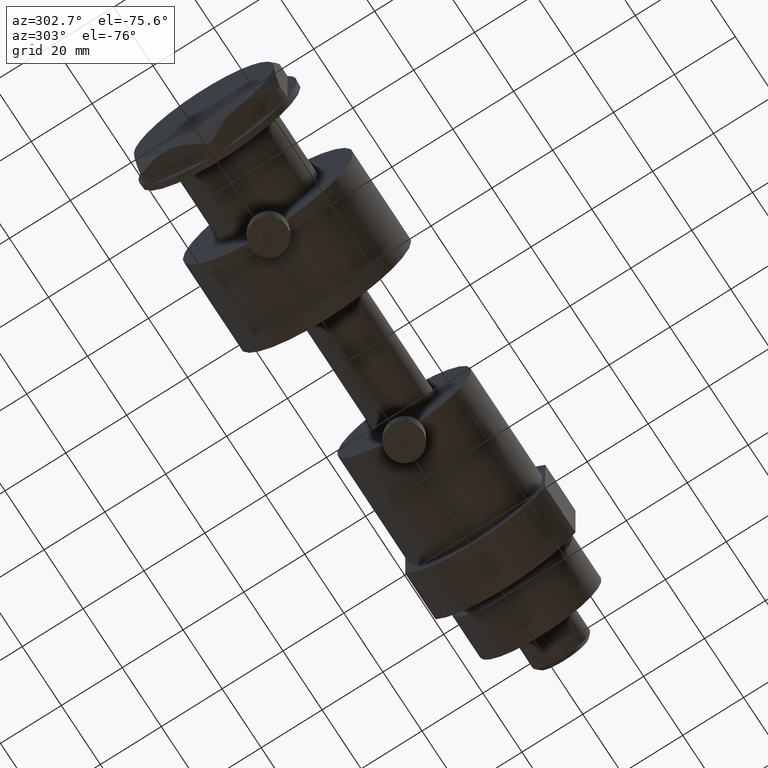
[diagram: clean part render]
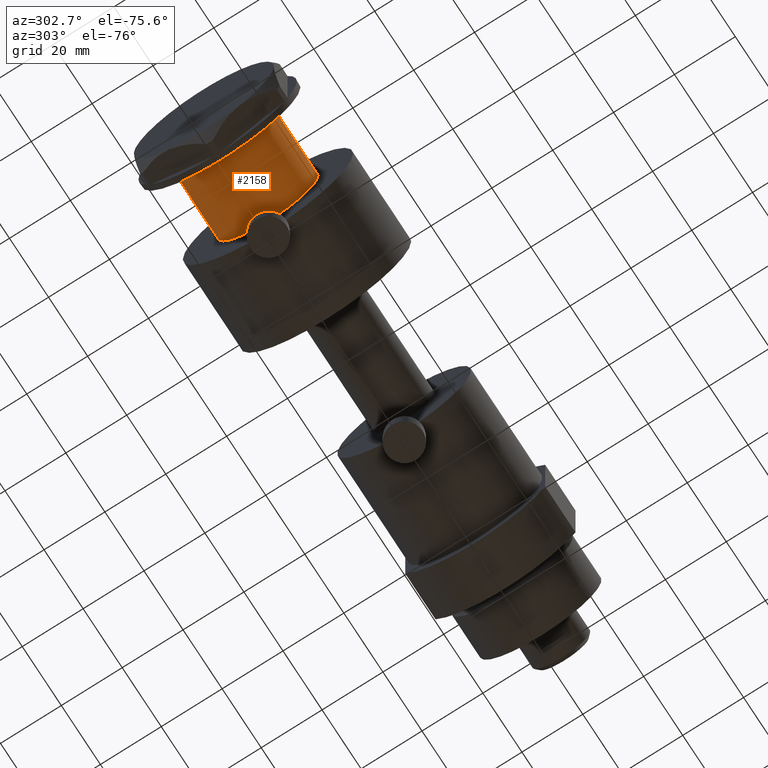
[diagram: same view with one face highlighted and labeled with its STEP entity id]
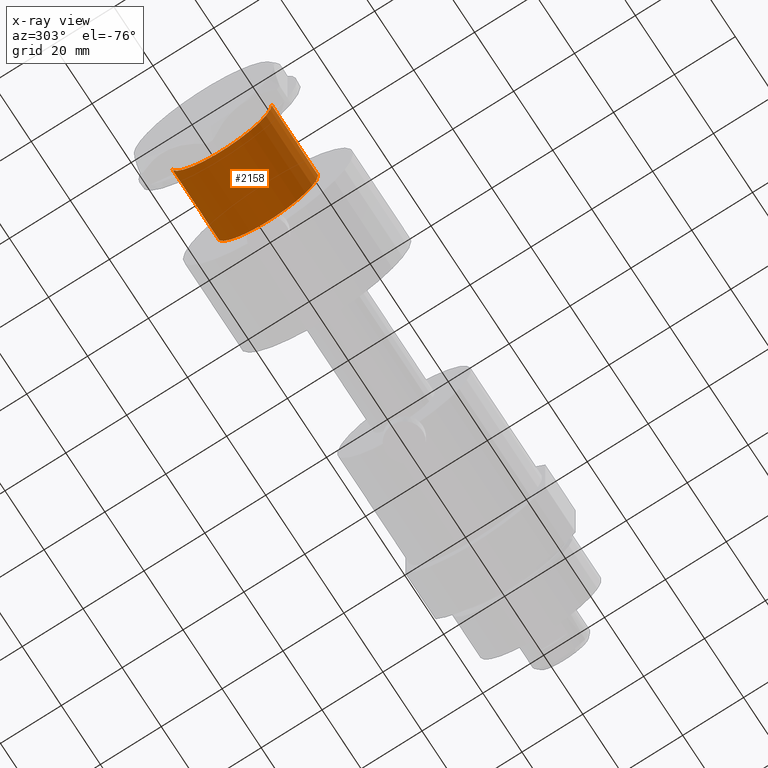
[diagram: x-ray of the same camera — body ghosted, the highlighted face saturated]
A machine part, auxiliary view. The second image highlights one B-rep face of the part: STEP entity #2158.
The next image is the same camera in x-ray: the body ghosted, the highlighted face saturated — about 0% of this face is hidden behind the body in this view.
In plain terms, the highlighted cylindrical surface (partial cylindrical patch) has radius 16.5 mm, axis along (-1, -0, 0).
Its self-contained STEP definition (entity closure, byte-faithful):
#42 = DIRECTION ( 'NONE',  ( -1.000000000000000000, 0.000000000000000000, 0.000000000000000000 ) ) ;
#48 = VERTEX_POINT ( 'NONE', #1894 ) ;
#94 = DIRECTION ( 'NONE',  ( -0.000000000000000000, -0.000000000000000000, 1.000000000000000000 ) ) ;
#301 = CARTESIAN_POINT ( 'NONE',  ( 0.000000000000000000, 0.000000000000000000, -2.000000000000000000 ) ) ;
#347 = ORIENTED_EDGE ( 'NONE', *, *, #625, .F. ) ;
#431 = ORIENTED_EDGE ( 'NONE', *, *, #3242, .T. ) ;
#536 = VERTEX_POINT ( 'NONE', #809 ) ;
#625 = EDGE_CURVE ( 'NONE', #705, #938, #1352, .T. ) ;
#705 = VERTEX_POINT ( 'NONE', #2273 ) ;
#809 = CARTESIAN_POINT ( 'NONE',  ( -16.50000000000000000, 2.020667218593133100E-15, -2.000000000000000000 ) ) ;
#938 = VERTEX_POINT ( 'NONE', #2999 ) ;
#1194 = CARTESIAN_POINT ( 'NONE',  ( -16.50000000000000000, 2.020667218593133100E-15, -25.80000000000000426 ) ) ;
#1343 = EDGE_CURVE ( 'NONE', #705, #536, #3454, .T. ) ;
#1352 = CIRCLE ( 'NONE', #2328, 16.50000000000000000 ) ;
#1382 = DIRECTION ( 'NONE',  ( 0.000000000000000000, 0.000000000000000000, -1.000000000000000000 ) ) ;
#1432 = CARTESIAN_POINT ( 'NONE',  ( 16.50000000000000000, 0.000000000000000000, -25.80000000000000426 ) ) ;
#1688 = LINE ( 'NONE', #1432, #1923 ) ;
#1832 = ORIENTED_EDGE ( 'NONE', *, *, #1343, .T. ) ;
#1866 = AXIS2_PLACEMENT_3D ( 'NONE', #301, #1382, #2484 ) ;
#1894 = CARTESIAN_POINT ( 'NONE',  ( 16.50000000000000000, 0.000000000000000000, -2.000000000000000000 ) ) ;
#1923 = VECTOR ( 'NONE', #2781, 1000.000000000000000 ) ;
#2016 = CARTESIAN_POINT ( 'NONE',  ( 0.000000000000000000, 0.000000000000000000, -25.80000000000000426 ) ) ;
#2045 = FACE_OUTER_BOUND ( 'NONE', #3599, .T. ) ;
#2158 = ADVANCED_FACE ( 'NONE', ( #2045 ), #2816, .T. ) ;
#2212 = VECTOR ( 'NONE', #94, 1000.000000000000000 ) ;
#2273 = CARTESIAN_POINT ( 'NONE',  ( -16.50000000000000000, 2.020667218593133100E-15, -25.80000000000000426 ) ) ;
#2328 = AXIS2_PLACEMENT_3D ( 'NONE', #2759, #2512, #42 ) ;
#2484 = DIRECTION ( 'NONE',  ( -1.000000000000000000, 0.000000000000000000, 0.000000000000000000 ) ) ;
#2505 = AXIS2_PLACEMENT_3D ( 'NONE', #2016, #2553, #3115 ) ;
#2512 = DIRECTION ( 'NONE',  ( 0.000000000000000000, 0.000000000000000000, -1.000000000000000000 ) ) ;
#2553 = DIRECTION ( 'NONE',  ( -0.000000000000000000, -0.000000000000000000, 1.000000000000000000 ) ) ;
#2759 = CARTESIAN_POINT ( 'NONE',  ( 0.000000000000000000, 0.000000000000000000, -25.80000000000000426 ) ) ;
#2781 = DIRECTION ( 'NONE',  ( -0.000000000000000000, -0.000000000000000000, 1.000000000000000000 ) ) ;
#2816 = CYLINDRICAL_SURFACE ( 'NONE', #2505, 16.50000000000000000 ) ;
#2999 = CARTESIAN_POINT ( 'NONE',  ( 16.50000000000000000, 0.000000000000000000, -25.80000000000000426 ) ) ;
#3063 = CIRCLE ( 'NONE', #1866, 16.50000000000000000 ) ;
#3115 = DIRECTION ( 'NONE',  ( 1.000000000000000000, 0.000000000000000000, 0.000000000000000000 ) ) ;
#3242 = EDGE_CURVE ( 'NONE', #536, #48, #3063, .T. ) ;
#3246 = EDGE_CURVE ( 'NONE', #938, #48, #1688, .T. ) ;
#3327 = ORIENTED_EDGE ( 'NONE', *, *, #3246, .F. ) ;
#3454 = LINE ( 'NONE', #1194, #2212 ) ;
#3599 = EDGE_LOOP ( 'NONE', ( #347, #1832, #431, #3327 ) ) ;